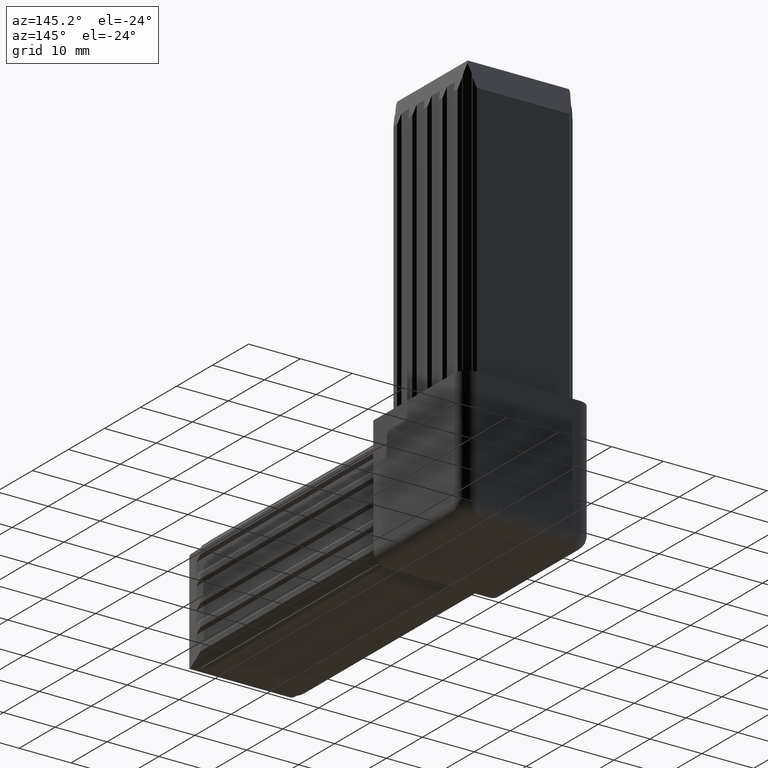
[diagram: clean part render]
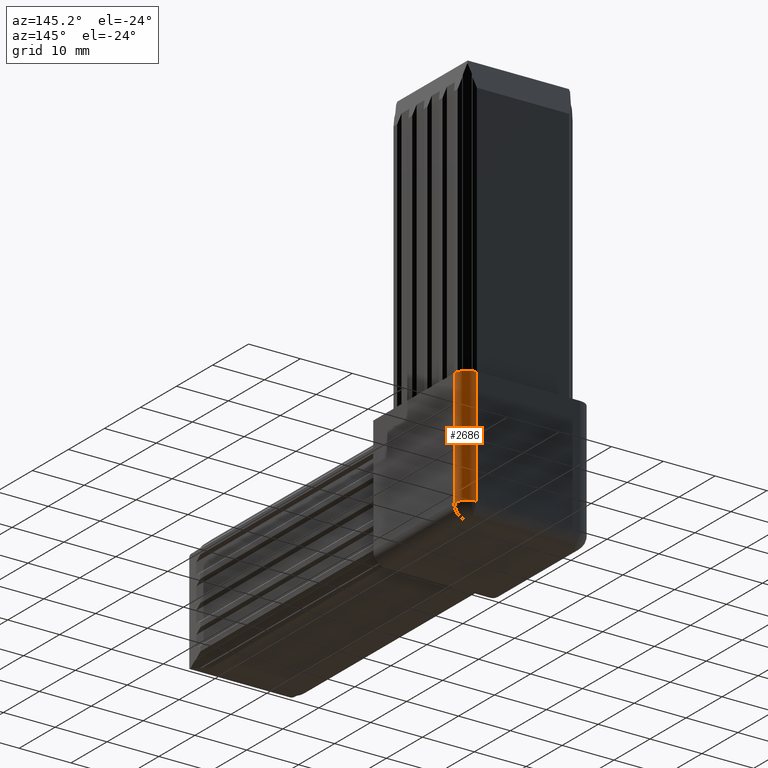
[diagram: same view with one face highlighted and labeled with its STEP entity id]
A machine part, auxiliary view. The second image highlights one B-rep face of the part: STEP entity #2686.
In plain terms, the highlighted cylindrical surface (edge-blend (fillet) strip) has radius 2.5 mm, axis along (0, 0, -1).
Its self-contained STEP definition (entity closure, byte-faithful):
#153=CYLINDRICAL_SURFACE('',#2856,2.5);
#167=FACE_OUTER_BOUND('',#310,.T.);
#310=EDGE_LOOP('',(#1912,#1913,#1914,#1915));
#456=LINE('',#3744,#837);
#457=LINE('',#3745,#838);
#837=VECTOR('',#3049,10.);
#838=VECTOR('',#3050,10.);
#1213=CIRCLE('',#2854,2.5);
#1215=CIRCLE('',#2857,2.5);
#1236=VERTEX_POINT('',#3734);
#1238=VERTEX_POINT('',#3737);
#1239=VERTEX_POINT('',#3741);
#1240=VERTEX_POINT('',#3742);
#1503=EDGE_CURVE('',#1238,#1236,#1213,.F.);
#1505=EDGE_CURVE('',#1239,#1240,#1215,.T.);
#1506=EDGE_CURVE('',#1240,#1238,#456,.T.);
#1507=EDGE_CURVE('',#1236,#1239,#457,.T.);
#1912=ORIENTED_EDGE('',*,*,#1505,.T.);
#1913=ORIENTED_EDGE('',*,*,#1506,.T.);
#1914=ORIENTED_EDGE('',*,*,#1503,.T.);
#1915=ORIENTED_EDGE('',*,*,#1507,.T.);
#2686=ADVANCED_FACE('',(#167),#153,.T.);
#2854=AXIS2_PLACEMENT_3D('',#3738,#3041,#3042);
#2856=AXIS2_PLACEMENT_3D('',#3740,#3045,#3046);
#2857=AXIS2_PLACEMENT_3D('',#3743,#3047,#3048);
#3041=DIRECTION('center_axis',(0.,0.,-1.));
#3042=DIRECTION('ref_axis',(1.,0.,0.));
#3045=DIRECTION('center_axis',(0.,0.,-1.));
#3046=DIRECTION('ref_axis',(0.707106781186547,0.707106781186547,0.));
#3047=DIRECTION('center_axis',(0.,0.,-1.));
#3048=DIRECTION('ref_axis',(0.707106781186547,0.707106781186547,0.));
#3049=DIRECTION('',(0.,0.,-1.));
#3050=DIRECTION('',(0.,0.,1.));
#3734=CARTESIAN_POINT('',(10.,12.5,-10.));
#3737=CARTESIAN_POINT('',(12.5,10.,-10.));
#3738=CARTESIAN_POINT('Origin',(10.,10.,-10.));
#3740=CARTESIAN_POINT('Origin',(10.,10.,0.));
#3741=CARTESIAN_POINT('',(10.,12.5,12.5));
#3742=CARTESIAN_POINT('',(12.5,10.,12.5));
#3743=CARTESIAN_POINT('Origin',(10.,10.,12.5));
#3744=CARTESIAN_POINT('',(12.5,10.,0.));
#3745=CARTESIAN_POINT('',(10.,12.5,0.));